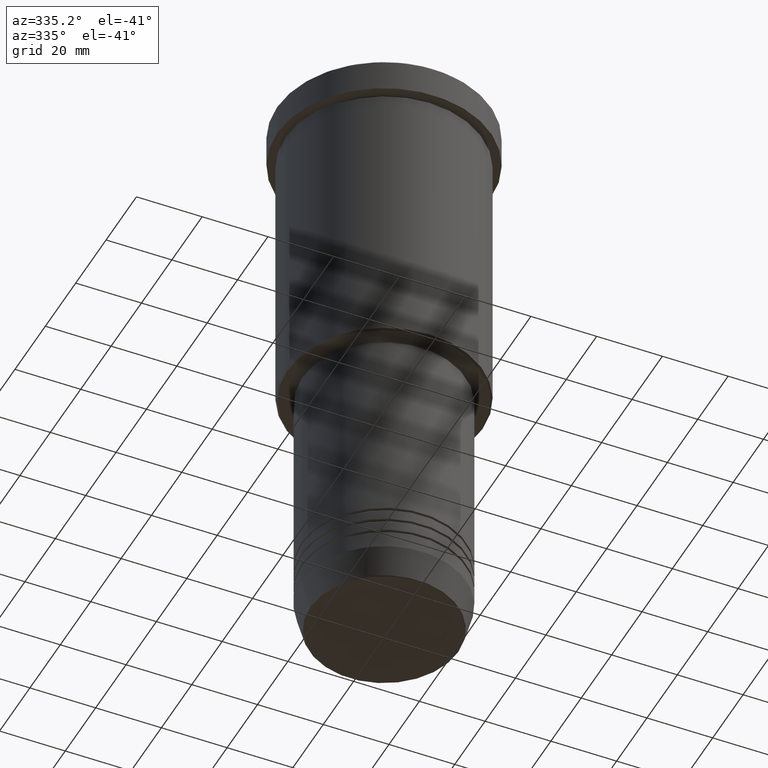
[diagram: clean part render]
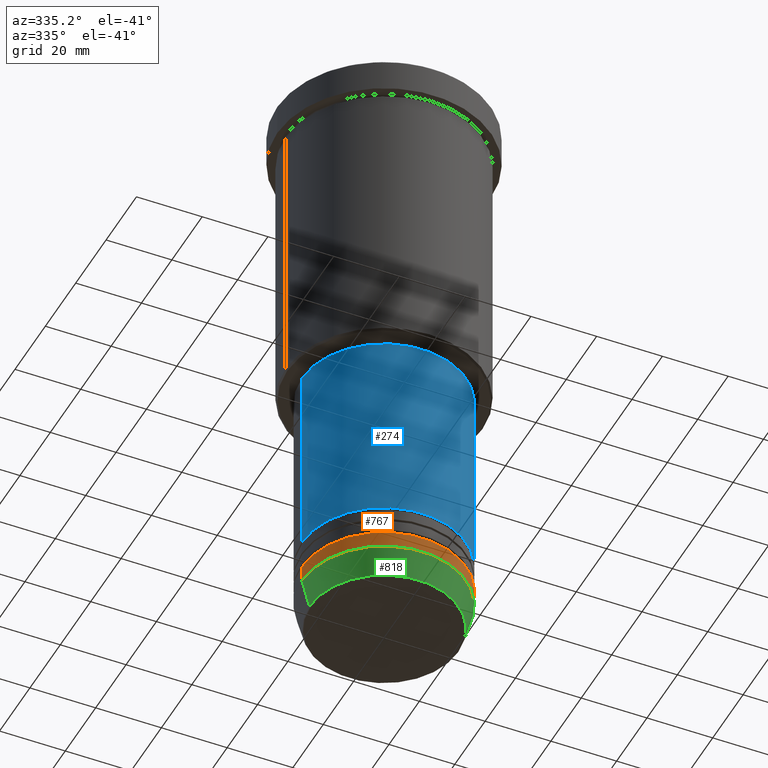
[diagram: same view with three faces highlighted in distinct colors, each labeled with its STEP entity id]
A machine part, auxiliary view with three faces highlighted in distinct colors.
Their STEP definitions:

[orange] entity #767 — the highlighted cylindrical surface (partial cylindrical patch) has radius 25 mm, axis along (-0, -0, 1).
#21 = CIRCLE ( 'NONE', #319, 25.00000000000000000 ) ;
#37 = EDGE_CURVE ( 'NONE', #377, #72, #21, .T. ) ;
#51 = EDGE_CURVE ( 'NONE', #652, #360, #698, .T. ) ;
#58 = VECTOR ( 'NONE', #245, 1000.000000000000000 ) ;
#72 = VERTEX_POINT ( 'NONE', #691 ) ;
#83 = EDGE_CURVE ( 'NONE', #377, #652, #405, .T. ) ;
#99 = CARTESIAN_POINT ( 'NONE',  ( -25.00000000000000000, 3.061616997868383043E-15, -171.0000000000000000 ) ) ;
#130 = DIRECTION ( 'NONE',  ( -0.000000000000000000, -0.000000000000000000, 1.000000000000000000 ) ) ;
#136 = EDGE_LOOP ( 'NONE', ( #1154, #358, #707, #1015 ) ) ;
#165 = CYLINDRICAL_SURFACE ( 'NONE', #1042, 25.00000000000000000 ) ;
#167 = LINE ( 'NONE', #1056, #58 ) ;
#172 = CARTESIAN_POINT ( 'NONE',  ( 0.000000000000000000, 0.000000000000000000, 0.000000000000000000 ) ) ;
#183 = AXIS2_PLACEMENT_3D ( 'NONE', #666, #130, #214 ) ;
#210 = EDGE_CURVE ( 'NONE', #72, #360, #167, .T. ) ;
#214 = DIRECTION ( 'NONE',  ( 1.000000000000000000, 0.000000000000000000, 0.000000000000000000 ) ) ;
#245 = DIRECTION ( 'NONE',  ( -0.000000000000000000, -0.000000000000000000, 1.000000000000000000 ) ) ;
#280 = CARTESIAN_POINT ( 'NONE',  ( 25.00000000000000000, 0.000000000000000000, -166.0000000000000000 ) ) ;
#313 = CARTESIAN_POINT ( 'NONE',  ( -25.00000000000000000, 3.061616997868383043E-15, -166.0000000000000000 ) ) ;
#319 = AXIS2_PLACEMENT_3D ( 'NONE', #856, #393, #1117 ) ;
#358 = ORIENTED_EDGE ( 'NONE', *, *, #37, .T. ) ;
#360 = VERTEX_POINT ( 'NONE', #280 ) ;
#377 = VERTEX_POINT ( 'NONE', #99 ) ;
#393 = DIRECTION ( 'NONE',  ( -0.000000000000000000, -0.000000000000000000, 1.000000000000000000 ) ) ;
#405 = LINE ( 'NONE', #1029, #939 ) ;
#445 = DIRECTION ( 'NONE',  ( 1.000000000000000000, 0.000000000000000000, 0.000000000000000000 ) ) ;
#534 = DIRECTION ( 'NONE',  ( -0.000000000000000000, -0.000000000000000000, 1.000000000000000000 ) ) ;
#652 = VERTEX_POINT ( 'NONE', #313 ) ;
#666 = CARTESIAN_POINT ( 'NONE',  ( 0.000000000000000000, 0.000000000000000000, -166.0000000000000000 ) ) ;
#691 = CARTESIAN_POINT ( 'NONE',  ( 25.00000000000000000, 0.000000000000000000, -171.0000000000000000 ) ) ;
#698 = CIRCLE ( 'NONE', #183, 25.00000000000000000 ) ;
#707 = ORIENTED_EDGE ( 'NONE', *, *, #210, .T. ) ;
#767 = ADVANCED_FACE ( 'NONE', ( #974 ), #165, .T. ) ;
#856 = CARTESIAN_POINT ( 'NONE',  ( 0.000000000000000000, 0.000000000000000000, -171.0000000000000000 ) ) ;
#860 = DIRECTION ( 'NONE',  ( -0.000000000000000000, -0.000000000000000000, 1.000000000000000000 ) ) ;
#939 = VECTOR ( 'NONE', #860, 1000.000000000000000 ) ;
#974 = FACE_OUTER_BOUND ( 'NONE', #136, .T. ) ;
#1015 = ORIENTED_EDGE ( 'NONE', *, *, #51, .F. ) ;
#1029 = CARTESIAN_POINT ( 'NONE',  ( -25.00000000000000000, 3.061616997868383043E-15, 0.000000000000000000 ) ) ;
#1042 = AXIS2_PLACEMENT_3D ( 'NONE', #172, #534, #445 ) ;
#1056 = CARTESIAN_POINT ( 'NONE',  ( 25.00000000000000000, 0.000000000000000000, 0.000000000000000000 ) ) ;
#1117 = DIRECTION ( 'NONE',  ( 1.000000000000000000, 0.000000000000000000, 0.000000000000000000 ) ) ;
#1154 = ORIENTED_EDGE ( 'NONE', *, *, #83, .F. ) ;

[blue] entity #274 — the highlighted cylindrical surface (partial cylindrical patch) has radius 25 mm, axis along (-0, -0, 1).
#43 = VECTOR ( 'NONE', #120, 1000.000000000000000 ) ;
#48 = CYLINDRICAL_SURFACE ( 'NONE', #699, 25.00000000000000355 ) ;
#69 = DIRECTION ( 'NONE',  ( -0.000000000000000000, -0.000000000000000000, 1.000000000000000000 ) ) ;
#73 = EDGE_CURVE ( 'NONE', #798, #164, #670, .T. ) ;
#120 = DIRECTION ( 'NONE',  ( -0.000000000000000000, -0.000000000000000000, 1.000000000000000000 ) ) ;
#153 = CARTESIAN_POINT ( 'NONE',  ( 0.000000000000000000, 0.000000000000000000, -157.0000000000000000 ) ) ;
#164 = VERTEX_POINT ( 'NONE', #705 ) ;
#193 = DIRECTION ( 'NONE',  ( -0.000000000000000000, -0.000000000000000000, 1.000000000000000000 ) ) ;
#259 = CARTESIAN_POINT ( 'NONE',  ( 25.00000000000000000, 0.000000000000000000, -157.0000000000000000 ) ) ;
#271 = VERTEX_POINT ( 'NONE', #259 ) ;
#274 = ADVANCED_FACE ( 'NONE', ( #977 ), #48, .T. ) ;
#305 = AXIS2_PLACEMENT_3D ( 'NONE', #915, #1179, #461 ) ;
#451 = AXIS2_PLACEMENT_3D ( 'NONE', #153, #69, #1178 ) ;
#461 = DIRECTION ( 'NONE',  ( 1.000000000000000000, 0.000000000000000000, 0.000000000000000000 ) ) ;
#504 = ORIENTED_EDGE ( 'NONE', *, *, #803, .T. ) ;
#510 = CARTESIAN_POINT ( 'NONE',  ( 25.00000000000000711, 0.000000000000000000, -97.00000000000002842 ) ) ;
#523 = ORIENTED_EDGE ( 'NONE', *, *, #73, .F. ) ;
#545 = CARTESIAN_POINT ( 'NONE',  ( 25.00000000000000355, 0.000000000000000000, 0.000000000000000000 ) ) ;
#557 = EDGE_LOOP ( 'NONE', ( #523, #504, #930, #642 ) ) ;
#618 = DIRECTION ( 'NONE',  ( -0.000000000000000000, -0.000000000000000000, 1.000000000000000000 ) ) ;
#622 = CARTESIAN_POINT ( 'NONE',  ( 0.000000000000000000, 0.000000000000000000, 0.000000000000000000 ) ) ;
#642 = ORIENTED_EDGE ( 'NONE', *, *, #1103, .F. ) ;
#654 = VERTEX_POINT ( 'NONE', #510 ) ;
#670 = LINE ( 'NONE', #1112, #43 ) ;
#695 = DIRECTION ( 'NONE',  ( 1.000000000000000000, 0.000000000000000000, 0.000000000000000000 ) ) ;
#699 = AXIS2_PLACEMENT_3D ( 'NONE', #622, #618, #695 ) ;
#705 = CARTESIAN_POINT ( 'NONE',  ( -25.00000000000001066, 3.061616997868384226E-15, -97.00000000000002842 ) ) ;
#798 = VERTEX_POINT ( 'NONE', #965 ) ;
#803 = EDGE_CURVE ( 'NONE', #798, #271, #962, .T. ) ;
#814 = CIRCLE ( 'NONE', #305, 25.00000000000000711 ) ;
#815 = VECTOR ( 'NONE', #193, 1000.000000000000000 ) ;
#915 = CARTESIAN_POINT ( 'NONE',  ( 0.000000000000000000, 0.000000000000000000, -97.00000000000002842 ) ) ;
#930 = ORIENTED_EDGE ( 'NONE', *, *, #1135, .T. ) ;
#962 = CIRCLE ( 'NONE', #451, 25.00000000000000000 ) ;
#965 = CARTESIAN_POINT ( 'NONE',  ( -25.00000000000000000, 3.061616997868383437E-15, -157.0000000000000000 ) ) ;
#977 = FACE_OUTER_BOUND ( 'NONE', #557, .T. ) ;
#996 = LINE ( 'NONE', #545, #815 ) ;
#1103 = EDGE_CURVE ( 'NONE', #164, #654, #814, .T. ) ;
#1112 = CARTESIAN_POINT ( 'NONE',  ( -25.00000000000000355, 3.061616997868383437E-15, 0.000000000000000000 ) ) ;
#1135 = EDGE_CURVE ( 'NONE', #271, #654, #996, .T. ) ;
#1178 = DIRECTION ( 'NONE',  ( 1.000000000000000000, 0.000000000000000000, 0.000000000000000000 ) ) ;
#1179 = DIRECTION ( 'NONE',  ( -0.000000000000000000, -0.000000000000000000, 1.000000000000000000 ) ) ;

[green] entity #818 — the highlighted conical surface has half-angle 15 deg.
#11 = CARTESIAN_POINT ( 'NONE',  ( 25.00000000000000000, 0.000000000000000000, -171.0000000000000000 ) ) ;
#21 = CIRCLE ( 'NONE', #319, 25.00000000000000000 ) ;
#37 = EDGE_CURVE ( 'NONE', #377, #72, #21, .T. ) ;
#45 = VERTEX_POINT ( 'NONE', #753 ) ;
#72 = VERTEX_POINT ( 'NONE', #691 ) ;
#88 = VECTOR ( 'NONE', #677, 1000.000000000000114 ) ;
#90 = ORIENTED_EDGE ( 'NONE', *, *, #1084, .F. ) ;
#99 = CARTESIAN_POINT ( 'NONE',  ( -25.00000000000000000, 3.061616997868383043E-15, -171.0000000000000000 ) ) ;
#218 = VERTEX_POINT ( 'NONE', #895 ) ;
#250 = VECTOR ( 'NONE', #478, 1000.000000000000114 ) ;
#256 = DIRECTION ( 'NONE',  ( -0.000000000000000000, -0.000000000000000000, 1.000000000000000000 ) ) ;
#315 = CARTESIAN_POINT ( 'NONE',  ( -25.00000000000000000, 3.061616997868383043E-15, -171.0000000000000000 ) ) ;
#319 = AXIS2_PLACEMENT_3D ( 'NONE', #856, #393, #1117 ) ;
#367 = DIRECTION ( 'NONE',  ( 1.000000000000000000, 0.000000000000000000, 0.000000000000000000 ) ) ;
#371 = DIRECTION ( 'NONE',  ( -0.000000000000000000, -0.000000000000000000, 1.000000000000000000 ) ) ;
#377 = VERTEX_POINT ( 'NONE', #99 ) ;
#393 = DIRECTION ( 'NONE',  ( -0.000000000000000000, -0.000000000000000000, 1.000000000000000000 ) ) ;
#420 = EDGE_CURVE ( 'NONE', #45, #218, #624, .T. ) ;
#438 = EDGE_LOOP ( 'NONE', ( #90, #878, #984, #468 ) ) ;
#468 = ORIENTED_EDGE ( 'NONE', *, *, #37, .F. ) ;
#473 = LINE ( 'NONE', #11, #250 ) ;
#478 = DIRECTION ( 'NONE',  ( 0.2588190451025212391, 0.000000000000000000, 0.9659258262890680902 ) ) ;
#488 = AXIS2_PLACEMENT_3D ( 'NONE', #848, #371, #367 ) ;
#519 = DIRECTION ( 'NONE',  ( 1.000000000000000000, 0.000000000000000000, 0.000000000000000000 ) ) ;
#544 = CARTESIAN_POINT ( 'NONE',  ( 0.000000000000000000, 0.000000000000000000, -171.0000000000000000 ) ) ;
#624 = CIRCLE ( 'NONE', #488, 22.68775668727495187 ) ;
#677 = DIRECTION ( 'NONE',  ( -0.2588190451025212391, 3.169619151431771721E-17, 0.9659258262890680902 ) ) ;
#691 = CARTESIAN_POINT ( 'NONE',  ( 25.00000000000000000, 0.000000000000000000, -171.0000000000000000 ) ) ;
#753 = CARTESIAN_POINT ( 'NONE',  ( -22.68775668727495187, 2.920032929279453370E-15, -179.6294095225512706 ) ) ;
#818 = ADVANCED_FACE ( 'NONE', ( #1168 ), #945, .T. ) ;
#848 = CARTESIAN_POINT ( 'NONE',  ( 0.000000000000000000, 0.000000000000000000, -179.6294095225512706 ) ) ;
#856 = CARTESIAN_POINT ( 'NONE',  ( 0.000000000000000000, 0.000000000000000000, -171.0000000000000000 ) ) ;
#878 = ORIENTED_EDGE ( 'NONE', *, *, #420, .T. ) ;
#895 = CARTESIAN_POINT ( 'NONE',  ( 22.68775668727495187, 0.000000000000000000, -179.6294095225512706 ) ) ;
#909 = AXIS2_PLACEMENT_3D ( 'NONE', #544, #256, #519 ) ;
#941 = LINE ( 'NONE', #315, #88 ) ;
#945 = CONICAL_SURFACE ( 'NONE', #909, 25.00000000000000000, 0.2617993877991499629 ) ;
#984 = ORIENTED_EDGE ( 'NONE', *, *, #1156, .T. ) ;
#1084 = EDGE_CURVE ( 'NONE', #45, #377, #941, .T. ) ;
#1117 = DIRECTION ( 'NONE',  ( 1.000000000000000000, 0.000000000000000000, 0.000000000000000000 ) ) ;
#1156 = EDGE_CURVE ( 'NONE', #218, #72, #473, .T. ) ;
#1168 = FACE_OUTER_BOUND ( 'NONE', #438, .T. ) ;